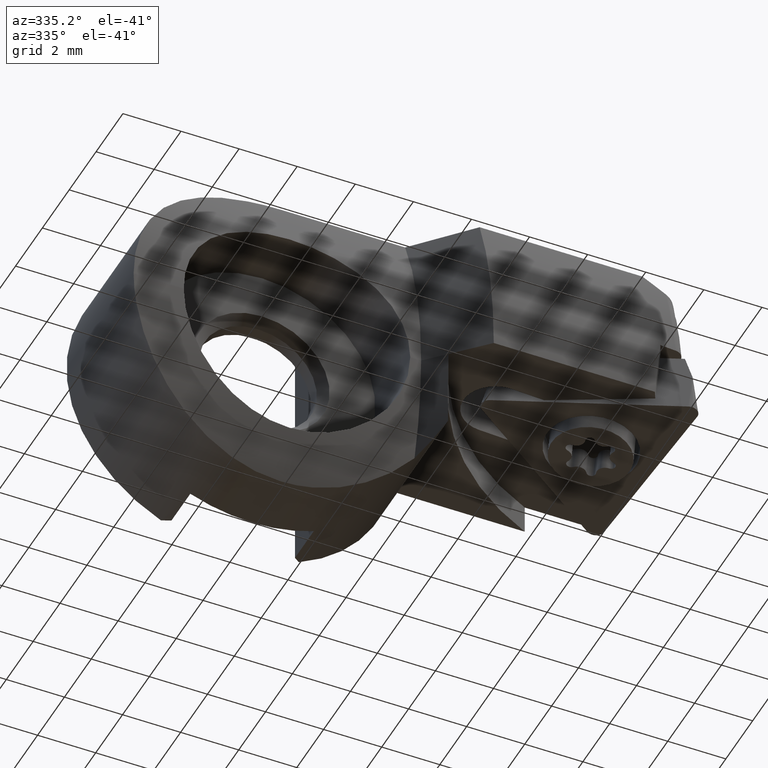
[diagram: clean part render]
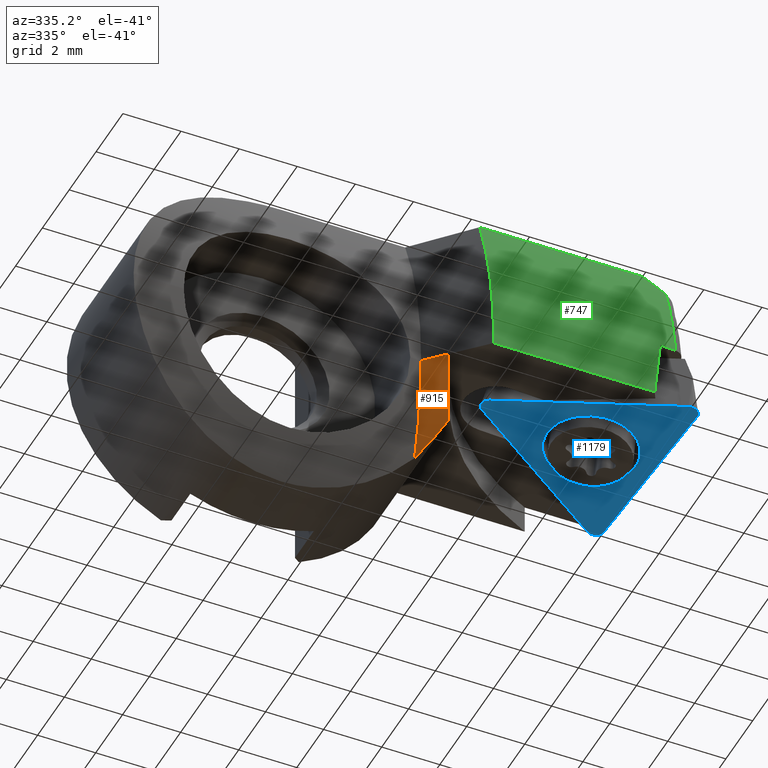
[diagram: same view with three faces highlighted in distinct colors, each labeled with its STEP entity id]
A machine part, auxiliary view with three faces highlighted in distinct colors.
Their STEP definitions:

[orange] entity #915 — the highlighted conical surface has half-angle 45 deg.
#551=EDGE_CURVE('NONE',#739,#1257,#1543,.T.);
#581=VERTEX_POINT('NONE',#1577);
#693=EDGE_CURVE('NONE',#1393,#581,#1700,.T.);
#739=VERTEX_POINT('',#1748);
#915=ADVANCED_FACE('NONE',(#1940),#1941,.T.);
#993=EDGE_CURVE('NONE',#1257,#1393,#2029,.F.);
#1257=VERTEX_POINT('NONE',#2325);
#1393=VERTEX_POINT('NONE',#2481);
#1475=EDGE_CURVE('',#581,#739,#2565,.T.);
#1543=CIRCLE('',#2657,13.85);
#1577=CARTESIAN_POINT('',(4.91693976354088,-5.64193976354088,-6.27263370921603E-016));
#1700=B_SPLINE_CURVE_WITH_KNOTS('',3,(#2993,#2994,#2995,#2996,#2997,#2998,#2999,#3000,#3001,#3002,#3003,#3004,#3005,#3006),.UNSPECIFIED.,.F.,.F.,(4,2,2,2,2,2,4),(0.0,1.15829521878516,2.31659043757032,3.47488565635549,4.63318087514065,5.69737149543978,6.76156211573891),.UNSPECIFIED.);
#1748=CARTESIAN_POINT('',(4.275,-5.0,-2.21961630667949E-015));
#1940=FACE_OUTER_BOUND('',#3850,.T.);
#1941=CONICAL_SURFACE('',#3851,15.56,0.78539816339745);
#2029=B_SPLINE_CURVE_WITH_KNOTS('',3,(#4054,#4055,#4056,#4057,#4058,#4059,#4060,#4061,#4062,#4063,#4064,#4065,#4066,#4067),.UNSPECIFIED.,.F.,.F.,(4,2,2,2,2,2,4),(7.94695600272952,8.64280083732287,9.33864567191623,10.0344905065096,11.1514234639503,12.268356421391,13.3852893788316),.UNSPECIFIED.);
#2325=CARTESIAN_POINT('',(4.275,-4.50879859867646,-3.65581728208618));
#2481=CARTESIAN_POINT('',(4.98186179260239,-5.47063361620284,-2.6118342365871));
#2565=LINE('',#4829,#4830);
#2657=AXIS2_PLACEMENT_3D('',#4878,#4879,#4880);
#2993=CARTESIAN_POINT('',(5.15631249369936,-5.05117562901011,-4.8753342365871));
#2994=CARTESIAN_POINT('',(5.11682600943124,-5.14035017445521,-4.50175600204627));
#2995=CARTESIAN_POINT('',(5.08103935661989,-5.22478869726855,-4.10723272464055));
#2996=CARTESIAN_POINT('',(5.01976520762609,-5.37391087255649,-3.2950081733915));
#2997=CARTESIAN_POINT('',(4.99425746764719,-5.43854946724155,-2.87730015501822));
#2998=CARTESIAN_POINT('',(4.95429196629396,-5.54179737059854,-2.03831622756434));
#2999=CARTESIAN_POINT('',(4.93981228277759,-5.58039779644352,-1.61695660768804));
#3000=CARTESIAN_POINT('',(4.92113971912727,-5.63046204720771,-0.790847196109697));
#3001=CARTESIAN_POINT('',(4.91693976354087,-5.64193976354088,-0.386098406261721));
#3002=CARTESIAN_POINT('',(4.91693976354087,-5.64193976354088,0.354730206766376));
#3003=CARTESIAN_POINT('',(4.92066450568846,-5.63176879696955,0.744668117844985));
#3004=CARTESIAN_POINT('',(4.93721360252333,-5.58733820905372,1.52298315936862));
#3005=CARTESIAN_POINT('',(4.95006045063927,-5.55310525916065,1.91136133370679));
#3006=CARTESIAN_POINT('',(4.96541232132441,-5.51315279540403,2.2635));
#3850=EDGE_LOOP('',(#5358,#5359,#5360,#5361));
#3851=AXIS2_PLACEMENT_3D('',#5362,#5363,#5364);
#4054=CARTESIAN_POINT('',(5.5803023761486,-6.28876942560872,-0.707707842792704));
#4055=CARTESIAN_POINT('',(5.55023790188825,-6.2475900511259,-0.944767328093585));
#4056=CARTESIAN_POINT('',(5.50477193021675,-6.18532426315579,-1.18019725499368));
#4057=CARTESIAN_POINT('',(5.38773155428763,-6.02514460271791,-1.63331795556807));
#4058=CARTESIAN_POINT('',(5.31611124652707,-5.92717018625921,-1.85141933760963));
#4059=CARTESIAN_POINT('',(5.15569609624457,-5.7079234607092,-2.25999781172879));
#4060=CARTESIAN_POINT('',(5.06693930011316,-5.5867060075073,-2.45051927370444));
#4061=CARTESIAN_POINT('',(4.82916052037624,-5.26230069111687,-2.90146461490222));
#4062=CARTESIAN_POINT('',(4.66123195033744,-5.03350142179645,-3.16314739263771));
#4063=CARTESIAN_POINT('',(4.29414818370488,-4.5345884604124,-3.64593967207223));
#4064=CARTESIAN_POINT('',(4.09500647153398,-4.26449849837196,-3.86708394781598));
#4065=CARTESIAN_POINT('',(3.67904156211054,-3.70216636770306,-4.26474716027963));
#4066=CARTESIAN_POINT('',(3.46214376761352,-3.40983154889108,-4.44135904032377));
#4067=CARTESIAN_POINT('',(3.24370985094168,-3.11663490041061,-4.59553820601068));
#4829=CARTESIAN_POINT('',(5.98499999999999,-6.71,-2.61398092025899E-015));
#4830=VECTOR('',#6127,1.0);
#4878=CARTESIAN_POINT('',(4.275,8.85,-5.23536506635494E-016));
#4879=DIRECTION('',(1.0,0.0,-1.22464679914735E-016));
#4880=DIRECTION('',(0.0,1.0,0.0));
#5358=ORIENTED_EDGE('',*,*,#1475,.T.);
#5359=ORIENTED_EDGE('',*,*,#551,.T.);
#5360=ORIENTED_EDGE('',*,*,#993,.T.);
#5361=ORIENTED_EDGE('',*,*,#693,.T.);
#5362=CARTESIAN_POINT('',(5.98499999999999,8.85,-7.3295110928969E-016));
#5363=DIRECTION('',(1.0,-0.0,-1.22464679914735E-016));
#5364=DIRECTION('',(0.0,1.0,0.0));
#6127=DIRECTION('',(-0.707106781186546,0.707106781186549,1.73188351330743E-016));

[blue] entity #1179 — the highlighted planar face has unit normal (0.087, 0.0046, 0.9962).
#609=EDGE_CURVE('NONE',#1391,#835,#1608,.T.);
#623=VERTEX_POINT('NONE',#1624);
#671=EDGE_CURVE('NONE',#1383,#1319,#1676,.T.);
#703=EDGE_CURVE('NONE',#1249,#901,#1710,.T.);
#715=EDGE_CURVE('NONE',#623,#1249,#1722,.T.);
#755=EDGE_CURVE('NONE',#1403,#1433,#1765,.T.);
#835=VERTEX_POINT('',#1854);
#901=VERTEX_POINT('NONE',#1926);
#991=EDGE_CURVE('NONE',#1433,#1435,#2027,.T.);
#995=EDGE_CURVE('NONE',#1319,#1383,#2031,.T.);
#1089=EDGE_CURVE('NONE',#901,#1403,#2138,.T.);
#1179=ADVANCED_FACE('NONE',(#2239,#2240),#2241,.F.);
#1209=EDGE_CURVE('NONE',#1435,#1391,#2273,.T.);
#1233=EDGE_CURVE('NONE',#835,#623,#2299,.T.);
#1249=VERTEX_POINT('NONE',#2317);
#1319=VERTEX_POINT('NONE',#2398);
#1383=VERTEX_POINT('NONE',#2470);
#1391=VERTEX_POINT('NONE',#2479);
#1403=VERTEX_POINT('NONE',#2492);
#1433=VERTEX_POINT('NONE',#2523);
#1435=VERTEX_POINT('NONE',#2525);
#1608=CIRCLE('',#2825,0.3);
#1624=CARTESIAN_POINT('',(12.5722652906946,-6.96350374863806,-0.428424160496065));
#1676=CIRCLE('',#2960,1.53406505653397);
#1710=CIRCLE('',#3022,0.3);
#1722=LINE('',#3041,#3042);
#1765=CIRCLE('',#3115,0.3);
#1854=CARTESIAN_POINT('',(12.7236592078285,-6.99550699928511,-0.441504723239462));
#1926=CARTESIAN_POINT('',(7.00295189133149,-3.62424784222356,0.0428700694179215));
#2027=CIRCLE('',#4051,0.3);
#2031=CIRCLE('',#4070,1.53406505653397);
#2138=LINE('',#4200,#4201);
#2239=FACE_OUTER_BOUND('',#4345,.T.);
#2240=FACE_BOUND('',#4346,.T.);
#2241=PLANE('',#4347);
#2273=LINE('',#4394,#4395);
#2299=CIRCLE('',#4428,0.3);
#2317=CARTESIAN_POINT('',(7.0312131847838,-4.14309395674847,0.0427766092344536));
#2398=CARTESIAN_POINT('',(10.6638439126593,-2.14863564667638,-0.283734076605205));
#2470=CARTESIAN_POINT('',(10.8307160873407,-5.21222435332363,-0.284285923394798));
#2479=CARTESIAN_POINT('',(13.0057583394016,-6.67969178343729,-0.467597431123474));
#2492=CARTESIAN_POINT('',(12.2048684758146,-0.218504259814247,-0.427209178110983));
#2523=CARTESIAN_POINT('',(12.3518903556361,-0.170241737208316,-0.44027528251368));
#2525=CARTESIAN_POINT('',(12.6666228179739,-0.453538409138383,-0.466475908921859));
#2825=AXIS2_PLACEMENT_3D('',#4961,#4962,#4963);
#2960=AXIS2_PLACEMENT_3D('',#5047,#5048,#5049);
#3022=AXIS2_PLACEMENT_3D('',#5085,#5086,#5087);
#3041=CARTESIAN_POINT('',(7.0312131847838,-4.14309395674847,0.0427766092344536));
#3042=VECTOR('',#5096,1000.0);
#3115=AXIS2_PLACEMENT_3D('',#5142,#5143,#5144);
#4051=AXIS2_PLACEMENT_3D('',#5478,#5479,#5480);
#4070=AXIS2_PLACEMENT_3D('',#5481,#5482,#5483);
#4200=CARTESIAN_POINT('',(12.2048684758146,-0.218504259814247,-0.427209178110983));
#4201=VECTOR('',#5623,1000.0);
#4345=EDGE_LOOP('',(#5764,#5765,#5766,#5767,#5768,#5769,#5770,#5771));
#4346=EDGE_LOOP('',(#5772,#5773));
#4347=AXIS2_PLACEMENT_3D('',#5774,#5775,#5776);
#4394=CARTESIAN_POINT('',(12.6666228179739,-0.453538409138383,-0.466475908921859));
#4395=VECTOR('',#5810,1000.0);
#4428=AXIS2_PLACEMENT_3D('',#5835,#5836,#5837);
#4961=CARTESIAN_POINT('',(12.7073425424462,-6.69595105539617,-0.441450763977379));
#4962=DIRECTION('',(-0.087036298831284,-0.0045613791387594,-0.996194698091746));
#4963=DIRECTION('',(-0.0543888846077901,0.998519812963162,0.000179864206945656));
#5047=CARTESIAN_POINT('',(10.74728,-3.68043,-0.284010000000001));
#5048=DIRECTION('',(0.087036298831284,0.0045613791387594,0.996194698091746));
#5049=DIRECTION('',(-0.0543888846077901,0.998519812963162,0.000179864206945656));
#5085=CARTESIAN_POINT('',(7.16629043653534,-3.87554126350657,0.0297500057531401));
#5086=DIRECTION('',(-0.087036298831284,-0.0045613791387594,-0.996194698091746));
#5087=DIRECTION('',(-0.0543888846077901,0.998519812963162,0.000179864206945656));
#5096=DIRECTION('',(-0.888646645817042,0.452323431270142,0.0755688586795204));
#5142=CARTESIAN_POINT('',(12.3682070210185,-0.469797681097264,-0.440329241775764));
#5143=DIRECTION('',(-0.087036298831284,-0.0045613791387594,-0.996194698091746));
#5144=DIRECTION('',(-0.0543888846077901,0.998519812963162,0.000179864206945656));
#5478=CARTESIAN_POINT('',(12.3682070210185,-0.469797681097264,-0.440329241775764));
#5479=DIRECTION('',(-0.087036298831284,-0.0045613791387594,-0.996194698091746));
#5480=DIRECTION('',(-0.0543888846077901,0.998519812963162,0.000179864206945656));
#5481=CARTESIAN_POINT('',(10.74728,-3.68043,-0.284010000000001));
#5482=DIRECTION('',(0.087036298831284,0.0045613791387594,0.996194698091746));
#5483=DIRECTION('',(-0.0543888846077901,0.998519812963162,0.000179864206945656));
#5623=DIRECTION('',(0.834257761209252,0.546196381693014,-0.0753889944725747));
#5764=ORIENTED_EDGE('',*,*,#755,.T.);
#5765=ORIENTED_EDGE('',*,*,#991,.T.);
#5766=ORIENTED_EDGE('',*,*,#1209,.T.);
#5767=ORIENTED_EDGE('',*,*,#609,.T.);
#5768=ORIENTED_EDGE('',*,*,#1233,.T.);
#5769=ORIENTED_EDGE('',*,*,#715,.T.);
#5770=ORIENTED_EDGE('',*,*,#703,.T.);
#5771=ORIENTED_EDGE('',*,*,#1089,.T.);
#5772=ORIENTED_EDGE('',*,*,#671,.T.);
#5773=ORIENTED_EDGE('',*,*,#995,.T.);
#5774=CARTESIAN_POINT('',(12.3682070210185,-0.469797681097264,-0.440329241775764));
#5775=DIRECTION('',(0.087036298831284,0.0045613791387594,0.996194698091746));
#5776=DIRECTION('',(0.994719323184622,0.054197573196269,-0.0871555571536499));
#5810=DIRECTION('',(0.05438888460779,-0.998519812963162,-0.00017986420694565));
#5835=CARTESIAN_POINT('',(12.7073425424462,-6.69595105539617,-0.441450763977379));
#5836=DIRECTION('',(-0.087036298831284,-0.0045613791387594,-0.996194698091746));
#5837=DIRECTION('',(-0.0543888846077901,0.998519812963162,0.000179864206945656));

[green] entity #747 — the highlighted cylindrical surface (partial cylindrical patch) has radius 15.56 mm, axis along (1, -0, -0).
#625=VERTEX_POINT('NONE',#1626);
#627=EDGE_CURVE('NONE',#1081,#1269,#1628,.F.);
#629=EDGE_CURVE('NONE',#1387,#889,#1630,.T.);
#643=VERTEX_POINT('NONE',#1645);
#727=EDGE_CURVE('NONE',#889,#1081,#1736,.T.);
#747=ADVANCED_FACE('NONE',(#1756),#1757,.T.);
#883=EDGE_CURVE('NONE',#929,#643,#1907,.T.);
#889=VERTEX_POINT('NONE',#1913);
#929=VERTEX_POINT('NONE',#1956);
#931=EDGE_CURVE('NONE',#1269,#625,#1958,.T.);
#1081=VERTEX_POINT('NONE',#2129);
#1169=EDGE_CURVE('NONE',#625,#929,#2228,.T.);
#1269=VERTEX_POINT('NONE',#2337);
#1335=EDGE_CURVE('NONE',#643,#1387,#2416,.T.);
#1387=VERTEX_POINT('NONE',#2475);
#1626=CARTESIAN_POINT('',(11.7908263844885,-6.56108699539558,2.14755619725052));
#1628=LINE('',#2892,#2893);
#1630=LINE('',#2896,#2897);
#1645=CARTESIAN_POINT('',(12.2874929728949,-5.90503646935698,4.93988854003258));
#1736=CIRCLE('',#3077,15.56);
#1756=FACE_OUTER_BOUND('',#3103,.T.);
#1757=CYLINDRICAL_SURFACE('',#3104,15.56);
#1907=B_SPLINE_CURVE_WITH_KNOTS('',3,(#3799,#3800,#3801,#3802,#3803,#3804,#3805),.UNSPECIFIED.,.F.,.F.,(4,3,4),(0.0,0.666651524700418,1.0),.UNSPECIFIED.);
#1913=CARTESIAN_POINT('',(5.98499999999999,-5.65768675564784,5.625));
#1956=CARTESIAN_POINT('',(12.3215404709232,-6.56747335245043,2.10121760569458));
#1958=ELLIPSE('',#3876,17.5281372029643,15.56);
#2129=CARTESIAN_POINT('',(5.98499999999999,-6.71,-7.32951109289689E-016));
#2228=ELLIPSE('',#4332,178.775984375926,15.56);
#2337=CARTESIAN_POINT('',(11.5320426402376,-6.70999999999999,-1.66717975350489E-016));
#2416=ELLIPSE('',#4611,22.0353617279439,15.56);
#2475=CARTESIAN_POINT('',(11.5884782537555,-5.65768675564784,5.625));
#2892=CARTESIAN_POINT('',(15.2060401171788,-6.71,-1.86220283572093E-015));
#2893=VECTOR('',#4984,1.0);
#2896=CARTESIAN_POINT('',(15.2060401171788,-5.65768675564784,5.625));
#2897=VECTOR('',#4985,1.0);
#3077=AXIS2_PLACEMENT_3D('',#5114,#5115,#5116);
#3103=EDGE_LOOP('',(#5126,#5127,#5128,#5129,#5130,#5131,#5132));
#3104=AXIS2_PLACEMENT_3D('',#5133,#5134,#5135);
#3799=CARTESIAN_POINT('',(12.3215404709232,-6.56747335245043,2.10121760569458));
#3800=CARTESIAN_POINT('',(12.3170378559598,-6.47987242077414,2.74398065227703));
#3801=CARTESIAN_POINT('',(12.3104640330918,-6.35204861165681,3.38116420549057));
#3802=CARTESIAN_POINT('',(12.3018763004353,-6.18492273735175,4.00807912619789));
#3803=CARTESIAN_POINT('',(12.2975821415213,-6.10135410618761,4.32155794566696));
#3804=CARTESIAN_POINT('',(12.2927852636447,-6.00800561134738,4.63232827162282));
#3805=CARTESIAN_POINT('',(12.2874929728949,-5.90503646935698,4.93988854003259));
#3876=AXIS2_PLACEMENT_3D('',#5383,#5384,#5385);
#4332=AXIS2_PLACEMENT_3D('',#5751,#5752,#5753);
#4611=AXIS2_PLACEMENT_3D('',#5977,#5978,#5979);
#4984=DIRECTION('',(-1.0,-0.0,1.22464679914735E-016));
#4985=DIRECTION('',(-1.0,-0.0,1.22464679914735E-016));
#5114=CARTESIAN_POINT('',(5.98499999999999,8.85,-7.32951109289689E-016));
#5115=DIRECTION('',(1.0,0.0,-1.22464679914735E-016));
#5116=DIRECTION('',(0.0,1.0,0.0));
#5126=ORIENTED_EDGE('',*,*,#1169,.T.);
#5127=ORIENTED_EDGE('',*,*,#883,.T.);
#5128=ORIENTED_EDGE('',*,*,#1335,.T.);
#5129=ORIENTED_EDGE('',*,*,#629,.T.);
#5130=ORIENTED_EDGE('',*,*,#727,.T.);
#5131=ORIENTED_EDGE('',*,*,#627,.T.);
#5132=ORIENTED_EDGE('',*,*,#931,.T.);
#5133=CARTESIAN_POINT('',(15.2060401171788,8.85,-1.86220283572093E-015));
#5134=DIRECTION('',(1.0,-0.0,-1.22464679914735E-016));
#5135=DIRECTION('',(0.0,1.0,0.0));
#5383=CARTESIAN_POINT('',(19.4926735305464,8.85,-2.3871640246008E-015));
#5384=DIRECTION('',(-0.887715552418687,0.45416297226168,0.0754790873051754));
#5385=DIRECTION('',(0.460392330511691,0.87570427891642,0.145536654810696));
#5751=CARTESIAN_POINT('',(35.5635317340057,8.85,-4.35527653044254E-015));
#5752=DIRECTION('',(0.0870362988312837,0.00456137913875908,0.996194698091746));
#5753=DIRECTION('',(-0.996205140864948,0.000398517877009869,0.087035386468667));
#5977=CARTESIAN_POINT('',(16.4608820545964,8.85,-2.01587665193036E-015));
#5978=DIRECTION('',(-0.706137715918125,-0.0370071095592633,-0.707106781186549));
#5979=DIRECTION('',(-0.70807452020104,0.0369058835918719,0.705172623971159));